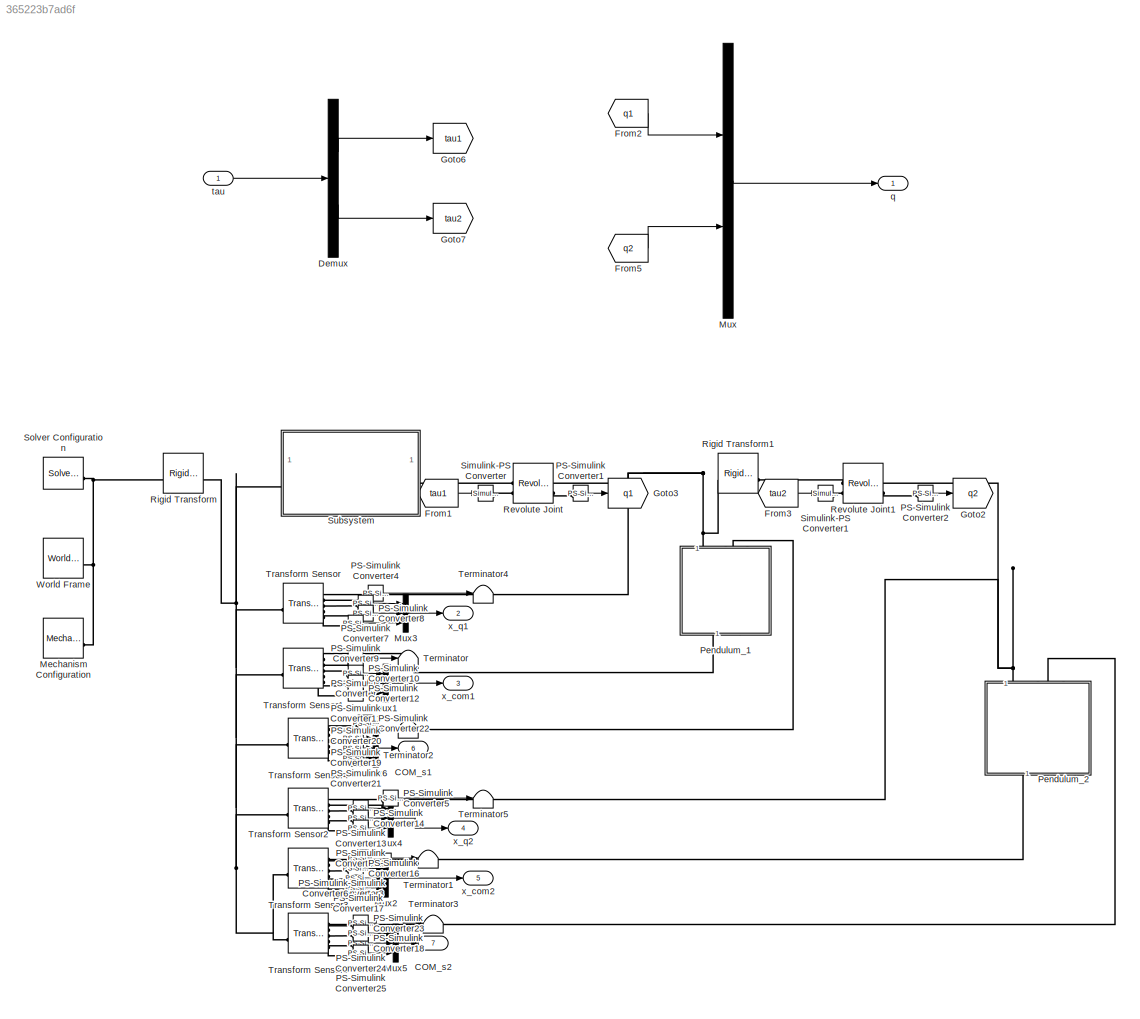
MODEL slx_365223b7ad6f
KIND model
CONFIG AbsTol = auto
CONFIG EnableMultiTasking = off
CONFIG FixedStep = auto
CONFIG MaxStep = auto
CONFIG MinStep = auto
CONFIG RelTol = 1e-3
CONFIG SampleTimeConstraint = Unconstrained
CONFIG SolverName = VariableStepAuto
CONFIG StartTime = 0.0
CONFIG StopTime = 10.0
BLOCK [Outport] COM_s1
  Port = 6
BLOCK [Outport] COM_s2
  Port = 7
BLOCK [Demux] Demux
  Outputs = 2
BLOCK [From] From1
  GotoTag = tau1
BLOCK [From] From2
  GotoTag = q1
BLOCK [From] From3
  GotoTag = tau2
BLOCK [From] From5
  GotoTag = q2
BLOCK [Goto] Goto2
  GotoTag = q2
BLOCK [Goto] Goto3
  GotoTag = q1
BLOCK [Goto] Goto6
  GotoTag = tau1
BLOCK [Goto] Goto7
  GotoTag = tau2
BLOCK [Reference] Mechanism Configuration  REF=sm_lib/Utilities/Mechanism
Configuration
  SourceBlock = sm_lib/Utilities/Mechanism\nConfiguration
  SourceType = Mechanism\nConfiguration
BLOCK [Mux] Mux
  DisplayOption = bar
  Inputs = 2
BLOCK [Mux] Mux1
  DisplayOption = bar
  Inputs = 3
BLOCK [Mux] Mux2
  DisplayOption = bar
  Inputs = 3
BLOCK [Mux] Mux3
  DisplayOption = bar
  Inputs = 3
BLOCK [Mux] Mux4
  DisplayOption = bar
  Inputs = 3
BLOCK [Mux] Mux5
  DisplayOption = bar
  Inputs = 3
BLOCK [Mux] Mux6
  DisplayOption = bar
  Inputs = 3
BLOCK [Reference] PS-Simulink Converter  REF=nesl_utility/PS-Simulink
Converter
  SourceBlock = nesl_utility/PS-Simulink\nConverter
  SourceType = PS-Simulink\nConverter
BLOCK [Reference] PS-Simulink Converter1  REF=nesl_utility/PS-Simulink
Converter
  SourceBlock = nesl_utility/PS-Simulink\nConverter
  SourceType = PS-Simulink\nConverter
BLOCK [Reference] PS-Simulink Converter10  REF=nesl_utility/PS-Simulink
Converter
  SourceBlock = nesl_utility/PS-Simulink\nConverter
  SourceType = PS-Simulink\nConverter
BLOCK [Reference] PS-Simulink Converter11  REF=nesl_utility/PS-Simulink
Converter
  SourceBlock = nesl_utility/PS-Simulink\nConverter
  SourceType = PS-Simulink\nConverter
BLOCK [Reference] PS-Simulink Converter12  REF=nesl_utility/PS-Simulink
Converter
  SourceBlock = nesl_utility/PS-Simulink\nConverter
  SourceType = PS-Simulink\nConverter
BLOCK [Reference] PS-Simulink Converter13  REF=nesl_utility/PS-Simulink
Converter
  SourceBlock = nesl_utility/PS-Simulink\nConverter
  SourceType = PS-Simulink\nConverter
BLOCK [Reference] PS-Simulink Converter14  REF=nesl_utility/PS-Simulink
Converter
  SourceBlock = nesl_utility/PS-Simulink\nConverter
  SourceType = PS-Simulink\nConverter
BLOCK [Reference] PS-Simulink Converter15  REF=nesl_utility/PS-Simulink
Converter
  SourceBlock = nesl_utility/PS-Simulink\nConverter
  SourceType = PS-Simulink\nConverter
BLOCK [Reference] PS-Simulink Converter16  REF=nesl_utility/PS-Simulink
Converter
  SourceBlock = nesl_utility/PS-Simulink\nConverter
  SourceType = PS-Simulink\nConverter
BLOCK [Reference] PS-Simulink Converter17  REF=nesl_utility/PS-Simulink
Converter
  SourceBlock = nesl_utility/PS-Simulink\nConverter
  SourceType = PS-Simulink\nConverter
BLOCK [Reference] PS-Simulink Converter18  REF=nesl_utility/PS-Simulink
Converter
  SourceBlock = nesl_utility/PS-Simulink\nConverter
  SourceType = PS-Simulink\nConverter
BLOCK [Reference] PS-Simulink Converter19  REF=nesl_utility/PS-Simulink
Converter
  SourceBlock = nesl_utility/PS-Simulink\nConverter
  SourceType = PS-Simulink\nConverter
BLOCK [Reference] PS-Simulink Converter2  REF=nesl_utility/PS-Simulink
Converter
  SourceBlock = nesl_utility/PS-Simulink\nConverter
  SourceType = PS-Simulink\nConverter
BLOCK [Reference] PS-Simulink Converter20  REF=nesl_utility/PS-Simulink
Converter
  SourceBlock = nesl_utility/PS-Simulink\nConverter
  SourceType = PS-Simulink\nConverter
BLOCK [Reference] PS-Simulink Converter21  REF=nesl_utility/PS-Simulink
Converter
  SourceBlock = nesl_utility/PS-Simulink\nConverter
  SourceType = PS-Simulink\nConverter
BLOCK [Reference] PS-Simulink Converter22  REF=nesl_utility/PS-Simulink
Converter
  SourceBlock = nesl_utility/PS-Simulink\nConverter
  SourceType = PS-Simulink\nConverter
BLOCK [Reference] PS-Simulink Converter23  REF=nesl_utility/PS-Simulink
Converter
  SourceBlock = nesl_utility/PS-Simulink\nConverter
  SourceType = PS-Simulink\nConverter
BLOCK [Reference] PS-Simulink Converter24  REF=nesl_utility/PS-Simulink
Converter
  SourceBlock = nesl_utility/PS-Simulink\nConverter
  SourceType = PS-Simulink\nConverter
BLOCK [Reference] PS-Simulink Converter25  REF=nesl_utility/PS-Simulink
Converter
  SourceBlock = nesl_utility/PS-Simulink\nConverter
  SourceType = PS-Simulink\nConverter
BLOCK [Reference] PS-Simulink Converter3  REF=nesl_utility/PS-Simulink
Converter
  SourceBlock = nesl_utility/PS-Simulink\nConverter
  SourceType = PS-Simulink\nConverter
BLOCK [Reference] PS-Simulink Converter4  REF=nesl_utility/PS-Simulink
Converter
  SourceBlock = nesl_utility/PS-Simulink\nConverter
  SourceType = PS-Simulink\nConverter
BLOCK [Reference] PS-Simulink Converter5  REF=nesl_utility/PS-Simulink
Converter
  SourceBlock = nesl_utility/PS-Simulink\nConverter
  SourceType = PS-Simulink\nConverter
BLOCK [Reference] PS-Simulink Converter6  REF=nesl_utility/PS-Simulink
Converter
  SourceBlock = nesl_utility/PS-Simulink\nConverter
  SourceType = PS-Simulink\nConverter
BLOCK [Reference] PS-Simulink Converter7  REF=nesl_utility/PS-Simulink
Converter
  SourceBlock = nesl_utility/PS-Simulink\nConverter
  SourceType = PS-Simulink\nConverter
BLOCK [Reference] PS-Simulink Converter8  REF=nesl_utility/PS-Simulink
Converter
  SourceBlock = nesl_utility/PS-Simulink\nConverter
  SourceType = PS-Simulink\nConverter
BLOCK [Reference] PS-Simulink Converter9  REF=nesl_utility/PS-Simulink
Converter
  SourceBlock = nesl_utility/PS-Simulink\nConverter
  SourceType = PS-Simulink\nConverter
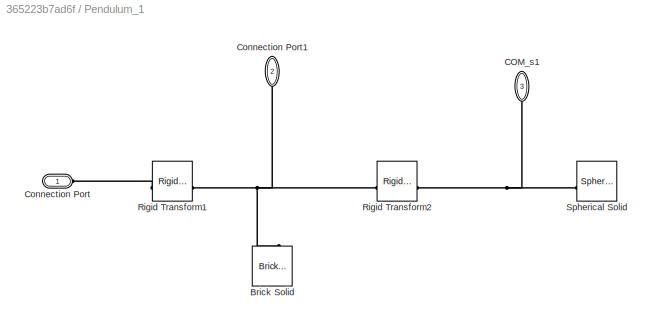
BLOCK [SubSystem] Pendulum_1
  NameLocation = left
BLOCK [Reference] Pendulum_1/Brick Solid  REF=sm_lib/Body Elements/Brick Solid
  NameLocation = right
  SourceBlock = sm_lib/Body Elements/Brick Solid
  SourceType = Brick Solid
BLOCK [PMIOPort] Pendulum_1/COM_s1
  NameLocation = left
  Port = 3
  Side = Left
BLOCK [PMIOPort] Pendulum_1/Connection Port
  Side = Left
BLOCK [PMIOPort] Pendulum_1/Connection Port1
  NameLocation = left
  Port = 2
  Side = Right
BLOCK [Reference] Pendulum_1/Rigid Transform1  REF=sm_lib/Frames and
Transforms/Rigid
Transform
  SourceBlock = sm_lib/Frames and\nTransforms/Rigid\nTransform
  SourceType = Rigid\nTransform
BLOCK [Reference] Pendulum_1/Rigid Transform2  REF=sm_lib/Frames and
Transforms/Rigid
Transform
  SourceBlock = sm_lib/Frames and\nTransforms/Rigid\nTransform
  SourceType = Rigid\nTransform
BLOCK [Reference] Pendulum_1/Spherical Solid  REF=sm_lib/Body Elements/Spherical Solid
  SourceBlock = sm_lib/Body Elements/Spherical Solid
  SourceType = Spherical Solid
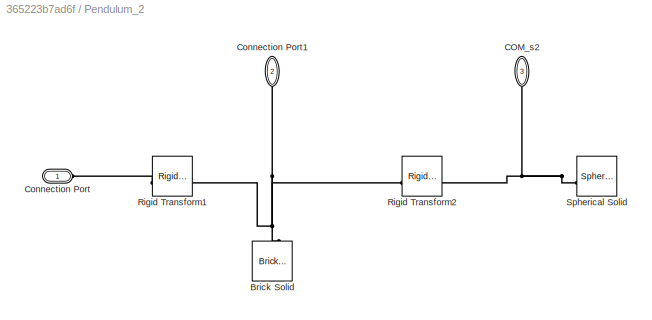
BLOCK [SubSystem] Pendulum_2
  NameLocation = left
BLOCK [Reference] Pendulum_2/Brick Solid  REF=sm_lib/Body Elements/Brick Solid
  NameLocation = right
  SourceBlock = sm_lib/Body Elements/Brick Solid
  SourceType = Brick Solid
BLOCK [PMIOPort] Pendulum_2/COM_s2
  NameLocation = left
  Port = 3
  Side = Left
BLOCK [PMIOPort] Pendulum_2/Connection Port
  Side = Left
BLOCK [PMIOPort] Pendulum_2/Connection Port1
  NameLocation = left
  Port = 2
  Side = Right
BLOCK [Reference] Pendulum_2/Rigid Transform1  REF=sm_lib/Frames and
Transforms/Rigid
Transform
  SourceBlock = sm_lib/Frames and\nTransforms/Rigid\nTransform
  SourceType = Rigid\nTransform
BLOCK [Reference] Pendulum_2/Rigid Transform2  REF=sm_lib/Frames and
Transforms/Rigid
Transform
  SourceBlock = sm_lib/Frames and\nTransforms/Rigid\nTransform
  SourceType = Rigid\nTransform
BLOCK [Reference] Pendulum_2/Spherical Solid  REF=sm_lib/Body Elements/Spherical Solid
  SourceBlock = sm_lib/Body Elements/Spherical Solid
  SourceType = Spherical Solid
BLOCK [Reference] Revolute Joint  REF=sm_lib/Joints/Revolute Joint
  SourceBlock = sm_lib/Joints/Revolute Joint
  SourceType = Revolute Joint
BLOCK [Reference] Revolute Joint1  REF=sm_lib/Joints/Revolute Joint
  SourceBlock = sm_lib/Joints/Revolute Joint
  SourceType = Revolute Joint
BLOCK [Reference] Rigid Transform  REF=sm_lib/Frames and
Transforms/Rigid
Transform
  SourceBlock = sm_lib/Frames and\nTransforms/Rigid\nTransform
  SourceType = Rigid\nTransform
BLOCK [Reference] Rigid Transform1  REF=sm_lib/Frames and
Transforms/Rigid
Transform
  SourceBlock = sm_lib/Frames and\nTransforms/Rigid\nTransform
  SourceType = Rigid\nTransform
BLOCK [Reference] Simulink-PS Converter  REF=nesl_utility/Simulink-PS
Converter
  SourceBlock = nesl_utility/Simulink-PS\nConverter
  SourceType = Simulink-PS\nConverter
BLOCK [Reference] Simulink-PS Converter1  REF=nesl_utility/Simulink-PS
Converter
  SourceBlock = nesl_utility/Simulink-PS\nConverter
  SourceType = Simulink-PS\nConverter
BLOCK [Reference] Solver Configuration  REF=nesl_utility/Solver
Configuration
  SourceBlock = nesl_utility/Solver\nConfiguration
  SourceType = Solver\nConfiguration
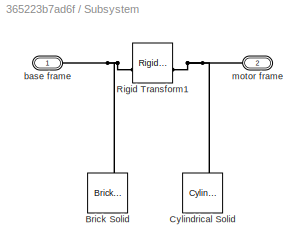
BLOCK [SubSystem] Subsystem
BLOCK [Reference] Subsystem/Brick Solid  REF=sm_lib/Body Elements/Brick Solid
  SourceBlock = sm_lib/Body Elements/Brick Solid
  SourceType = Brick Solid
BLOCK [Reference] Subsystem/Cylindrical Solid  REF=sm_lib/Body Elements/Cylindrical Solid
  NameLocation = right
  SourceBlock = sm_lib/Body Elements/Cylindrical Solid
  SourceType = Cylindrical Solid
BLOCK [Reference] Subsystem/Rigid Transform1  REF=sm_lib/Frames and
Transforms/Rigid
Transform
  SourceBlock = sm_lib/Frames and\nTransforms/Rigid\nTransform
  SourceType = Rigid\nTransform
BLOCK [PMIOPort] Subsystem/base frame
  Side = Left
BLOCK [PMIOPort] Subsystem/motor frame
  Port = 2
  Side = Right
BLOCK [Terminator] Terminator
BLOCK [Terminator] Terminator1
BLOCK [Terminator] Terminator2
BLOCK [Terminator] Terminator3
BLOCK [Terminator] Terminator4
BLOCK [Terminator] Terminator5
BLOCK [Reference] Transform Sensor  REF=sm_lib/Frames and
Transforms/Transform
Sensor
  SourceBlock = sm_lib/Frames and\nTransforms/Transform\nSensor
  SourceType = Transform\nSensor
BLOCK [Reference] Transform Sensor1  REF=sm_lib/Frames and
Transforms/Transform
Sensor
  SourceBlock = sm_lib/Frames and\nTransforms/Transform\nSensor
  SourceType = Transform\nSensor
BLOCK [Reference] Transform Sensor2  REF=sm_lib/Frames and
Transforms/Transform
Sensor
  SourceBlock = sm_lib/Frames and\nTransforms/Transform\nSensor
  SourceType = Transform\nSensor
BLOCK [Reference] Transform Sensor3  REF=sm_lib/Frames and
Transforms/Transform
Sensor
  SourceBlock = sm_lib/Frames and\nTransforms/Transform\nSensor
  SourceType = Transform\nSensor
BLOCK [Reference] Transform Sensor4  REF=sm_lib/Frames and
Transforms/Transform
Sensor
  SourceBlock = sm_lib/Frames and\nTransforms/Transform\nSensor
  SourceType = Transform\nSensor
BLOCK [Reference] Transform Sensor5  REF=sm_lib/Frames and
Transforms/Transform
Sensor
  SourceBlock = sm_lib/Frames and\nTransforms/Transform\nSensor
  SourceType = Transform\nSensor
BLOCK [Reference] World Frame  REF=sm_lib/Frames and
Transforms/World Frame
  SourceBlock = sm_lib/Frames and\nTransforms/World Frame
  SourceType = World Frame
BLOCK [Outport] q
BLOCK [Inport] tau
BLOCK [Outport] x_com1
  Port = 3
BLOCK [Outport] x_com2
  Port = 5
BLOCK [Outport] x_q1
  Port = 2
BLOCK [Outport] x_q2
  Port = 4
LINE Demux:1 -> Goto6:1
LINE Demux:2 -> Goto7:1
LINE From1:1 -> Simulink-PS Converter:1
LINE From2:1 -> Mux:1
LINE From3:1 -> Simulink-PS Converter1:1
LINE From5:1 -> Mux:2
LINE Mux1:1 -> x_com1:1
LINE Mux2:1 -> x_com2:1
LINE Mux3:1 -> x_q1:1
LINE Mux4:1 -> x_q2:1
LINE Mux5:1 -> COM_s2:1
LINE Mux6:1 -> COM_s1:1
LINE Mux:1 -> q:1
LINE PS-Simulink Converter10:1 -> Mux1:1
LINE PS-Simulink Converter11:1 -> Mux1:2
LINE PS-Simulink Converter12:1 -> Mux1:3
LINE PS-Simulink Converter13:1 -> Mux4:1
LINE PS-Simulink Converter14:1 -> Mux4:2
LINE PS-Simulink Converter15:1 -> Mux4:3
LINE PS-Simulink Converter16:1 -> Mux2:1
LINE PS-Simulink Converter17:1 -> Mux2:2
LINE PS-Simulink Converter18:1 -> Mux5:2
LINE PS-Simulink Converter19:1 -> Mux6:1
LINE PS-Simulink Converter1:1 -> Goto3:1
LINE PS-Simulink Converter20:1 -> Mux6:3
LINE PS-Simulink Converter21:1 -> Mux6:2
LINE PS-Simulink Converter22:1 -> Terminator2:1
LINE PS-Simulink Converter23:1 -> Terminator3:1
LINE PS-Simulink Converter24:1 -> Mux5:1
LINE PS-Simulink Converter25:1 -> Mux5:3
LINE PS-Simulink Converter2:1 -> Goto2:1
LINE PS-Simulink Converter3:1 -> Terminator1:1
LINE PS-Simulink Converter4:1 -> Terminator4:1
LINE PS-Simulink Converter5:1 -> Terminator5:1
LINE PS-Simulink Converter6:1 -> Mux2:3
LINE PS-Simulink Converter7:1 -> Mux3:1
LINE PS-Simulink Converter8:1 -> Mux3:2
LINE PS-Simulink Converter9:1 -> Mux3:3
LINE PS-Simulink Converter:1 -> Terminator:1
LINE tau:1 -> Demux:1
PNET net1: Mechanism Configuration:RConn1 -- Rigid Transform:LConn1 -- Solver Configuration:RConn1 -- World Frame:RConn1
PLINE PS-Simulink Converter10:LConn1 -- Transform Sensor1:RConn3
PLINE PS-Simulink Converter11:LConn1 -- Transform Sensor1:RConn4
PLINE PS-Simulink Converter12:LConn1 -- Transform Sensor1:RConn5
PLINE PS-Simulink Converter13:LConn1 -- Transform Sensor2:RConn3
PLINE PS-Simulink Converter14:LConn1 -- Transform Sensor2:RConn4
PLINE PS-Simulink Converter15:LConn1 -- Transform Sensor2:RConn5
PLINE PS-Simulink Converter16:LConn1 -- Transform Sensor3:RConn3
PLINE PS-Simulink Converter17:LConn1 -- Transform Sensor3:RConn4
PLINE PS-Simulink Converter18:LConn1 -- Transform Sensor5:RConn4
PLINE PS-Simulink Converter19:LConn1 -- Transform Sensor4:RConn3
PLINE PS-Simulink Converter1:LConn1 -- Revolute Joint:RConn2
PLINE PS-Simulink Converter20:LConn1 -- Transform Sensor4:RConn5
PLINE PS-Simulink Converter21:LConn1 -- Transform Sensor4:RConn4
PLINE PS-Simulink Converter22:LConn1 -- Transform Sensor4:RConn2
PLINE PS-Simulink Converter23:LConn1 -- Transform Sensor5:RConn2
PLINE PS-Simulink Converter24:LConn1 -- Transform Sensor5:RConn3
PLINE PS-Simulink Converter25:LConn1 -- Transform Sensor5:RConn5
PLINE PS-Simulink Converter2:LConn1 -- Revolute Joint1:RConn2
PLINE PS-Simulink Converter3:LConn1 -- Transform Sensor3:RConn2
PLINE PS-Simulink Converter4:LConn1 -- Transform Sensor:RConn2
PLINE PS-Simulink Converter5:LConn1 -- Transform Sensor2:RConn2
PLINE PS-Simulink Converter6:LConn1 -- Transform Sensor3:RConn5
PLINE PS-Simulink Converter7:LConn1 -- Transform Sensor:RConn3
PLINE PS-Simulink Converter8:LConn1 -- Transform Sensor:RConn4
PLINE PS-Simulink Converter9:LConn1 -- Transform Sensor:RConn5
PLINE PS-Simulink Converter:LConn1 -- Transform Sensor1:RConn2
PNET net2: Pendulum_1/Brick Solid:RConn1 -- Pendulum_1/Connection Port1:RConn1 -- Pendulum_1/Rigid Transform1:LConn1 -- Pendulum_1/Rigid Transform2:LConn1
PNET net3: Pendulum_1/COM_s1:RConn1 -- Pendulum_1/Rigid Transform2:RConn1 -- Pendulum_1/Spherical Solid:RConn1
PLINE Pendulum_1/Connection Port:RConn1 -- Pendulum_1/Rigid Transform1:RConn1
PNET net4: Pendulum_1:LConn1 -- Revolute Joint:RConn1 -- Rigid Transform1:LConn1 -- Transform Sensor:RConn1
PLINE Pendulum_1:LConn2 -- Transform Sensor4:RConn1
PLINE Pendulum_1:RConn1 -- Transform Sensor1:RConn1
PNET net5: Pendulum_2/Brick Solid:RConn1 -- Pendulum_2/Connection Port1:RConn1 -- Pendulum_2/Rigid Transform1:LConn1 -- Pendulum_2/Rigid Transform2:LConn1
PNET net6: Pendulum_2/COM_s2:RConn1 -- Pendulum_2/Rigid Transform2:RConn1 -- Pendulum_2/Spherical Solid:RConn1
PLINE Pendulum_2/Connection Port:RConn1 -- Pendulum_2/Rigid Transform1:RConn1
PNET net7: Pendulum_2:LConn1 -- Revolute Joint1:RConn1 -- Transform Sensor2:RConn1
PLINE Pendulum_2:LConn2 -- Transform Sensor5:RConn1
PLINE Pendulum_2:RConn1 -- Transform Sensor3:RConn1
PLINE Revolute Joint1:LConn1 -- Rigid Transform1:RConn1
PLINE Revolute Joint1:LConn2 -- Simulink-PS Converter1:RConn1
PLINE Revolute Joint:LConn1 -- Subsystem:RConn1
PLINE Revolute Joint:LConn2 -- Simulink-PS Converter:RConn1
PNET net8: Rigid Transform:RConn1 -- Subsystem:LConn1 -- Transform Sensor1:LConn1 -- Transform Sensor2:LConn1 -- Transform Sensor3:LConn1 -- Transform Sensor4:LConn1 -- Transform Sensor5:LConn1 -- Transform Sensor:LConn1
PNET net9: Subsystem/Brick Solid:RConn1 -- Subsystem/Rigid Transform1:LConn1 -- Subsystem/base frame:RConn1
PNET net10: Subsystem/Cylindrical Solid:RConn1 -- Subsystem/Rigid Transform1:RConn1 -- Subsystem/motor frame:RConn1
note: PNET lines group multi-terminal physical nets as a canonical sorted terminal list (undirected conserving connections); 2-terminal nets keep the pairwise PLINE form
